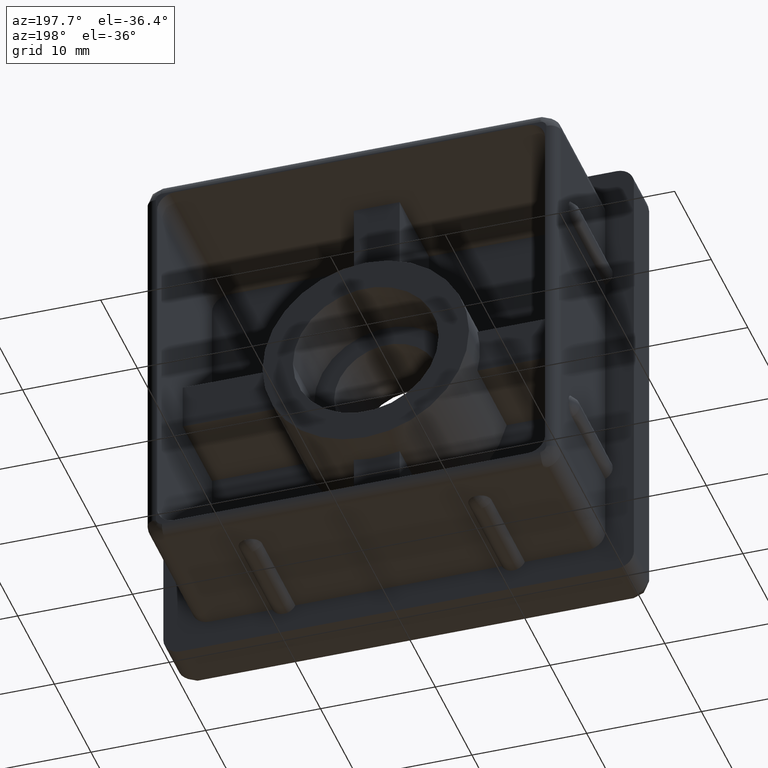
[diagram: clean part render]
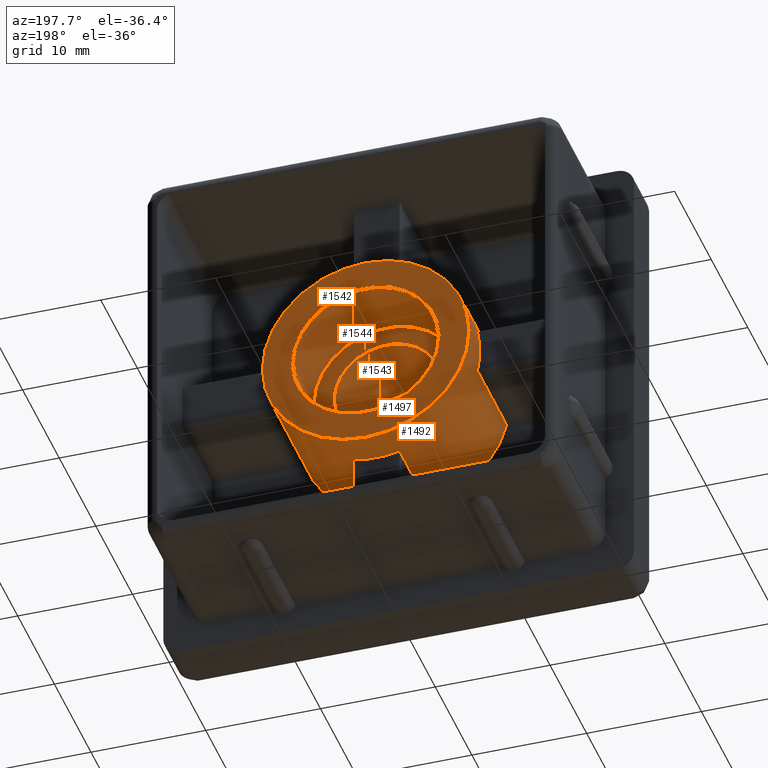
[diagram: same view with one multi-face feature highlighted, each face labeled with its STEP entity id]
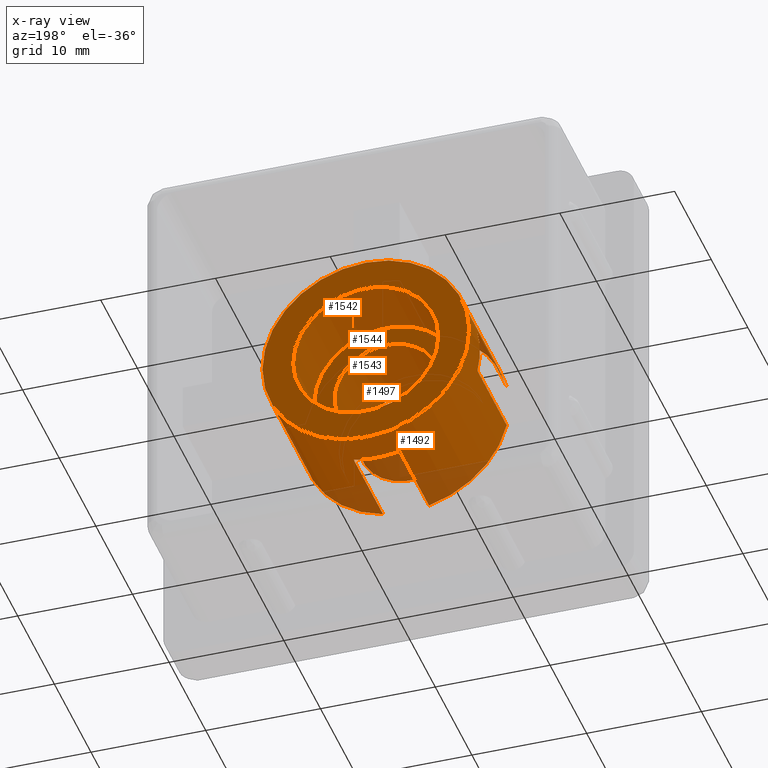
[diagram: x-ray of the same camera — body ghosted, the whole feature saturated]
A machine part, auxiliary view. The highlighted faces form ONE feature: a stepped (counterbored) hole: 3 coaxial cylindrical walls of radii 4.6 -> 6.35 -> 9 mm joined by 2 annular planar shoulder face(s). The faces share edges in the B-rep.
The next image is the same camera in x-ray: the body ghosted and the whole hole feature saturated, so the bore chain is visible through the body.
Their STEP definitions:
[1] entity #1492 (Cylinder):
#25=FACE_BOUND('',#288,.T.);
#85=CIRCLE('',#1573,9.);
#86=CIRCLE('',#1577,9.);
#87=CIRCLE('',#1581,9.);
#88=CIRCLE('',#1585,9.);
#90=CIRCLE('',#1588,9.);
#93=CIRCLE('',#1592,9.);
#94=CIRCLE('',#1594,9.);
#96=CIRCLE('',#1597,9.);
#97=CIRCLE('',#1598,9.);
#149=CYLINDRICAL_SURFACE('',#1596,9.);
#203=FACE_OUTER_BOUND('',#287,.T.);
#287=EDGE_LOOP('',(#1162));
#288=EDGE_LOOP('',(#1163,#1164,#1165,#1166,#1167,#1168,#1169,#1170,#1171,
#1172,#1173,#1174,#1175,#1176,#1177,#1178));
#395=LINE('',#3060,#523);
#397=LINE('',#3065,#525);
#404=LINE('',#3081,#532);
#406=LINE('',#3086,#534);
#413=LINE('',#3102,#541);
#415=LINE('',#3107,#543);
#427=LINE('',#3147,#555);
#428=LINE('',#3150,#556);
#523=VECTOR('',#1789,8.);
#525=VECTOR('',#1793,8.);
#532=VECTOR('',#1806,8.);
#534=VECTOR('',#1810,8.);
#541=VECTOR('',#1823,8.);
#543=VECTOR('',#1827,8.);
#555=VECTOR('',#1867,8.);
#556=VECTOR('',#1870,8.);
#696=VERTEX_POINT('',#3050);
#697=VERTEX_POINT('',#3052);
#699=VERTEX_POINT('',#3058);
#701=VERTEX_POINT('',#3064);
#704=VERTEX_POINT('',#3071);
#705=VERTEX_POINT('',#3073);
#707=VERTEX_POINT('',#3079);
#709=VERTEX_POINT('',#3085);
#712=VERTEX_POINT('',#3092);
#713=VERTEX_POINT('',#3094);
#715=VERTEX_POINT('',#3100);
#717=VERTEX_POINT('',#3106);
#718=VERTEX_POINT('',#3110);
#727=VERTEX_POINT('',#3133);
#730=VERTEX_POINT('',#3144);
#731=VERTEX_POINT('',#3146);
#732=VERTEX_POINT('',#3148);
#864=EDGE_CURVE('',#697,#696,#85,.T.);
#868=EDGE_CURVE('',#696,#699,#395,.T.);
#870=EDGE_CURVE('',#701,#697,#397,.T.);
#874=EDGE_CURVE('',#705,#704,#86,.T.);
#878=EDGE_CURVE('',#704,#707,#404,.T.);
#880=EDGE_CURVE('',#709,#705,#406,.T.);
#884=EDGE_CURVE('',#713,#712,#87,.T.);
#888=EDGE_CURVE('',#712,#715,#413,.T.);
#890=EDGE_CURVE('',#717,#713,#415,.T.);
#892=EDGE_CURVE('',#717,#718,#88,.T.);
#897=EDGE_CURVE('',#709,#715,#90,.T.);
#905=EDGE_CURVE('',#727,#699,#93,.T.);
#906=EDGE_CURVE('',#701,#707,#94,.T.);
#910=EDGE_CURVE('',#730,#730,#96,.T.);
#911=EDGE_CURVE('',#727,#731,#427,.T.);
#912=EDGE_CURVE('',#731,#732,#97,.T.);
#913=EDGE_CURVE('',#732,#718,#428,.T.);
#1162=ORIENTED_EDGE('',*,*,#910,.F.);
#1163=ORIENTED_EDGE('',*,*,#870,.T.);
#1164=ORIENTED_EDGE('',*,*,#864,.T.);
#1165=ORIENTED_EDGE('',*,*,#868,.T.);
#1166=ORIENTED_EDGE('',*,*,#905,.F.);
#1167=ORIENTED_EDGE('',*,*,#911,.T.);
#1168=ORIENTED_EDGE('',*,*,#912,.T.);
#1169=ORIENTED_EDGE('',*,*,#913,.T.);
#1170=ORIENTED_EDGE('',*,*,#892,.F.);
#1171=ORIENTED_EDGE('',*,*,#890,.T.);
#1172=ORIENTED_EDGE('',*,*,#884,.T.);
#1173=ORIENTED_EDGE('',*,*,#888,.T.);
#1174=ORIENTED_EDGE('',*,*,#897,.F.);
#1175=ORIENTED_EDGE('',*,*,#880,.T.);
#1176=ORIENTED_EDGE('',*,*,#874,.T.);
#1177=ORIENTED_EDGE('',*,*,#878,.T.);
#1178=ORIENTED_EDGE('',*,*,#906,.F.);
#1492=ADVANCED_FACE('',(#203,#25),#149,.T.);
#1573=AXIS2_PLACEMENT_3D('',#3053,#1782,#1783);
#1577=AXIS2_PLACEMENT_3D('',#3074,#1799,#1800);
#1581=AXIS2_PLACEMENT_3D('',#3095,#1816,#1817);
#1585=AXIS2_PLACEMENT_3D('',#3111,#1831,#1832);
#1588=AXIS2_PLACEMENT_3D('',#3120,#1840,#1841);
#1592=AXIS2_PLACEMENT_3D('',#3135,#1853,#1854);
#1594=AXIS2_PLACEMENT_3D('',#3137,#1857,#1858);
#1596=AXIS2_PLACEMENT_3D('',#3143,#1863,#1864);
#1597=AXIS2_PLACEMENT_3D('',#3145,#1865,#1866);
#1598=AXIS2_PLACEMENT_3D('',#3149,#1868,#1869);
#1782=DIRECTION('center_axis',(0.,1.,0.));
#1783=DIRECTION('ref_axis',(-1.,0.,0.));
#1789=DIRECTION('',(0.,-1.,0.));
#1793=DIRECTION('',(0.,1.,0.));
#1799=DIRECTION('center_axis',(0.,1.,0.));
#1800=DIRECTION('ref_axis',(-1.,0.,0.));
#1806=DIRECTION('',(0.,-1.,0.));
#1810=DIRECTION('',(0.,1.,0.));
#1816=DIRECTION('center_axis',(0.,1.,0.));
#1817=DIRECTION('ref_axis',(-1.,0.,0.));
#1823=DIRECTION('',(0.,-1.,0.));
#1827=DIRECTION('',(0.,1.,0.));
#1831=DIRECTION('center_axis',(0.,-1.,0.));
#1832=DIRECTION('ref_axis',(-1.,0.,0.));
#1840=DIRECTION('center_axis',(0.,-1.,0.));
#1841=DIRECTION('ref_axis',(-1.,0.,0.));
#1853=DIRECTION('center_axis',(0.,-1.,0.));
#1854=DIRECTION('ref_axis',(-1.,0.,0.));
#1857=DIRECTION('center_axis',(0.,-1.,0.));
#1858=DIRECTION('ref_axis',(-1.,0.,0.));
#1863=DIRECTION('center_axis',(0.,1.,0.));
#1864=DIRECTION('ref_axis',(-1.,0.,0.));
#1865=DIRECTION('center_axis',(0.,1.,0.));
#1866=DIRECTION('ref_axis',(-1.,0.,0.));
#1867=DIRECTION('',(0.,1.,0.));
#1868=DIRECTION('center_axis',(0.,1.,0.));
#1869=DIRECTION('ref_axis',(-1.,0.,0.));
#1870=DIRECTION('',(0.,-1.,0.));
#3050=CARTESIAN_POINT('',(2.,6.,8.77496438739212));
#3052=CARTESIAN_POINT('',(-2.,6.,8.77496438739212));
#3053=CARTESIAN_POINT('Origin',(0.,6.,0.));
#3058=CARTESIAN_POINT('',(2.,-2.,8.77496438739212));
#3060=CARTESIAN_POINT('',(2.,-2.,8.77496438739212));
#3064=CARTESIAN_POINT('',(-2.,-2.,8.77496438739212));
#3065=CARTESIAN_POINT('',(-2.,-2.,8.77496438739212));
#3071=CARTESIAN_POINT('',(-8.77496438739212,6.,2.));
#3073=CARTESIAN_POINT('',(-8.77496438739212,6.,-2.));
#3074=CARTESIAN_POINT('Origin',(0.,6.,0.));
#3079=CARTESIAN_POINT('',(-8.77496438739212,-2.,2.));
#3081=CARTESIAN_POINT('',(-8.77496438739212,-2.,2.));
#3085=CARTESIAN_POINT('',(-8.77496438739212,-2.,-2.));
#3086=CARTESIAN_POINT('',(-8.77496438739212,-2.,-2.));
#3092=CARTESIAN_POINT('',(-2.,6.,-8.77496438739212));
#3094=CARTESIAN_POINT('',(2.,6.,-8.77496438739212));
#3095=CARTESIAN_POINT('Origin',(0.,6.,0.));
#3100=CARTESIAN_POINT('',(-2.,-2.,-8.77496438739212));
#3102=CARTESIAN_POINT('',(-2.,-2.,-8.77496438739212));
#3106=CARTESIAN_POINT('',(2.,-2.,-8.77496438739212));
#3107=CARTESIAN_POINT('',(2.,-2.,-8.77496438739212));
#3110=CARTESIAN_POINT('',(8.77496438739212,-2.,-2.));
#3111=CARTESIAN_POINT('Origin',(0.,-2.,0.));
#3120=CARTESIAN_POINT('Origin',(0.,-2.,0.));
#3133=CARTESIAN_POINT('',(8.77496438739212,-2.,2.));
#3135=CARTESIAN_POINT('Origin',(0.,-2.,0.));
#3137=CARTESIAN_POINT('Origin',(0.,-2.,0.));
#3143=CARTESIAN_POINT('Origin',(0.,-2.,0.));
#3144=CARTESIAN_POINT('',(9.,9.,-1.10218211923262E-15));
#3145=CARTESIAN_POINT('Origin',(0.,9.,0.));
#3146=CARTESIAN_POINT('',(8.77496438739212,6.,2.));
#3147=CARTESIAN_POINT('',(8.77496438739212,-2.,2.));
#3148=CARTESIAN_POINT('',(8.77496438739212,6.,-2.));
#3149=CARTESIAN_POINT('Origin',(0.,6.,0.));
#3150=CARTESIAN_POINT('',(8.77496438739212,-2.,-2.));
[2] entity #1542 (Cylinder):
#32=FACE_BOUND('',#345,.T.);
#139=CIRCLE('',#1682,6.35);
#140=CIRCLE('',#1683,6.35);
#172=CYLINDRICAL_SURFACE('',#1681,6.35);
#253=FACE_OUTER_BOUND('',#344,.T.);
#344=EDGE_LOOP('',(#1448));
#345=EDGE_LOOP('',(#1449));
#780=VERTEX_POINT('',#3402);
#781=VERTEX_POINT('',#3404);
#1004=EDGE_CURVE('',#780,#780,#139,.T.);
#1005=EDGE_CURVE('',#781,#781,#140,.T.);
#1448=ORIENTED_EDGE('',*,*,#1004,.T.);
#1449=ORIENTED_EDGE('',*,*,#1005,.F.);
#1542=ADVANCED_FACE('',(#253,#32),#172,.F.);
#1681=AXIS2_PLACEMENT_3D('',#3401,#2084,#2085);
#1682=AXIS2_PLACEMENT_3D('',#3403,#2086,#2087);
#1683=AXIS2_PLACEMENT_3D('',#3405,#2088,#2089);
#2084=DIRECTION('center_axis',(0.,-1.,0.));
#2085=DIRECTION('ref_axis',(-1.,0.,0.));
#2086=DIRECTION('center_axis',(0.,-1.,0.));
#2087=DIRECTION('ref_axis',(-1.,0.,0.));
#2088=DIRECTION('center_axis',(0.,-1.,0.));
#2089=DIRECTION('ref_axis',(-1.,0.,0.));
#3401=CARTESIAN_POINT('Origin',(0.,9.,0.));
#3402=CARTESIAN_POINT('',(6.35,3.2,-7.77650717458569E-16));
#3403=CARTESIAN_POINT('Origin',(0.,3.2,0.));
#3404=CARTESIAN_POINT('',(6.35,9.,-7.77650717458569E-16));
#3405=CARTESIAN_POINT('Origin',(0.,9.,0.));
[3] entity #1497 (Cylinder):
#27=FACE_BOUND('',#295,.T.);
#99=CIRCLE('',#1604,4.6);
#100=CIRCLE('',#1606,4.6);
#150=CYLINDRICAL_SURFACE('',#1605,4.6);
#208=FACE_OUTER_BOUND('',#294,.T.);
#294=EDGE_LOOP('',(#1193));
#295=EDGE_LOOP('',(#1194));
#736=VERTEX_POINT('',#3164);
#737=VERTEX_POINT('',#3167);
#920=EDGE_CURVE('',#736,#736,#99,.T.);
#921=EDGE_CURVE('',#737,#737,#100,.T.);
#1193=ORIENTED_EDGE('',*,*,#921,.F.);
#1194=ORIENTED_EDGE('',*,*,#920,.T.);
#1497=ADVANCED_FACE('',(#208,#27),#150,.F.);
#1604=AXIS2_PLACEMENT_3D('',#3165,#1886,#1887);
#1605=AXIS2_PLACEMENT_3D('',#3166,#1888,#1889);
#1606=AXIS2_PLACEMENT_3D('',#3168,#1890,#1891);
#1886=DIRECTION('center_axis',(0.,-1.,0.));
#1887=DIRECTION('ref_axis',(1.,0.,0.));
#1888=DIRECTION('center_axis',(0.,-1.,0.));
#1889=DIRECTION('ref_axis',(1.,0.,0.));
#1890=DIRECTION('center_axis',(0.,-1.,0.));
#1891=DIRECTION('ref_axis',(1.,0.,0.));
#3164=CARTESIAN_POINT('',(4.6,-3.6,0.));
#3165=CARTESIAN_POINT('Origin',(0.,-3.60000000000001,0.));
#3166=CARTESIAN_POINT('Origin',(0.,56.7124369466422,0.));
#3167=CARTESIAN_POINT('',(-4.6,3.2,-5.63337527607783E-16));
#3168=CARTESIAN_POINT('Origin',(0.,3.2,0.));
[4] entity #1543 (Plane):
#33=FACE_BOUND('',#347,.T.);
#67=PLANE('',#1684);
#100=CIRCLE('',#1606,4.6);
#139=CIRCLE('',#1682,6.35);
#254=FACE_OUTER_BOUND('',#346,.T.);
#346=EDGE_LOOP('',(#1450));
#347=EDGE_LOOP('',(#1451));
#737=VERTEX_POINT('',#3167);
#780=VERTEX_POINT('',#3402);
#921=EDGE_CURVE('',#737,#737,#100,.T.);
#1004=EDGE_CURVE('',#780,#780,#139,.T.);
#1450=ORIENTED_EDGE('',*,*,#1004,.F.);
#1451=ORIENTED_EDGE('',*,*,#921,.T.);
#1543=ADVANCED_FACE('',(#254,#33),#67,.T.);
#1606=AXIS2_PLACEMENT_3D('',#3168,#1890,#1891);
#1682=AXIS2_PLACEMENT_3D('',#3403,#2086,#2087);
#1684=AXIS2_PLACEMENT_3D('',#3406,#2090,#2091);
#1890=DIRECTION('center_axis',(0.,-1.,0.));
#1891=DIRECTION('ref_axis',(1.,0.,0.));
#2086=DIRECTION('center_axis',(0.,-1.,0.));
#2087=DIRECTION('ref_axis',(-1.,0.,0.));
#2090=DIRECTION('center_axis',(0.,1.,0.));
#2091=DIRECTION('ref_axis',(0.,0.,1.));
#3167=CARTESIAN_POINT('',(-4.6,3.2,-5.63337527607783E-16));
#3168=CARTESIAN_POINT('Origin',(0.,3.2,0.));
#3402=CARTESIAN_POINT('',(6.35,3.2,-7.77650717458569E-16));
#3403=CARTESIAN_POINT('Origin',(0.,3.2,0.));
#3406=CARTESIAN_POINT('Origin',(-3.56201345779069E-16,3.2,1.45698559662094E-16));
[5] entity #1544 (Plane):
#34=FACE_BOUND('',#349,.T.);
#68=PLANE('',#1685);
#96=CIRCLE('',#1597,9.);
#140=CIRCLE('',#1683,6.35);
#255=FACE_OUTER_BOUND('',#348,.T.);
#348=EDGE_LOOP('',(#1452));
#349=EDGE_LOOP('',(#1453));
#730=VERTEX_POINT('',#3144);
#781=VERTEX_POINT('',#3404);
#910=EDGE_CURVE('',#730,#730,#96,.T.);
#1005=EDGE_CURVE('',#781,#781,#140,.T.);
#1452=ORIENTED_EDGE('',*,*,#910,.T.);
#1453=ORIENTED_EDGE('',*,*,#1005,.T.);
#1544=ADVANCED_FACE('',(#255,#34),#68,.T.);
#1597=AXIS2_PLACEMENT_3D('',#3145,#1865,#1866);
#1683=AXIS2_PLACEMENT_3D('',#3405,#2088,#2089);
#1685=AXIS2_PLACEMENT_3D('',#3407,#2092,#2093);
#1865=DIRECTION('center_axis',(0.,1.,0.));
#1866=DIRECTION('ref_axis',(-1.,0.,0.));
#2088=DIRECTION('center_axis',(0.,-1.,0.));
#2089=DIRECTION('ref_axis',(-1.,0.,0.));
#2092=DIRECTION('center_axis',(0.,1.,0.));
#2093=DIRECTION('ref_axis',(0.,0.,1.));
#3144=CARTESIAN_POINT('',(9.,9.,-1.10218211923262E-15));
#3145=CARTESIAN_POINT('Origin',(0.,9.,0.));
#3404=CARTESIAN_POINT('',(6.35,9.,-7.77650717458569E-16));
#3405=CARTESIAN_POINT('Origin',(0.,9.,0.));
#3407=CARTESIAN_POINT('Origin',(-5.03042222760184E-16,9.,-2.05596856412066E-16));